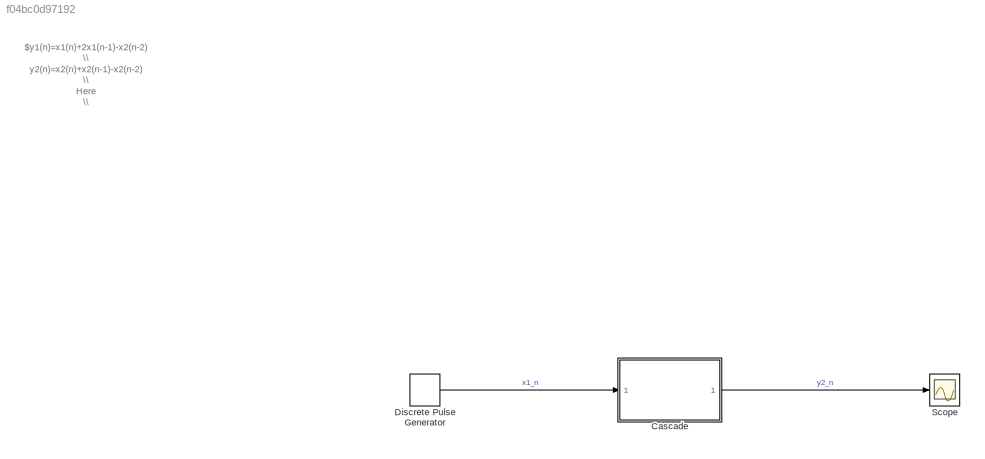
MODEL slx_f04bc0d97192
KIND model
CONFIG AbsTol = auto
CONFIG EnableMultiTasking = off
CONFIG FixedStep = auto
CONFIG MaxStep = auto
CONFIG MinStep = auto
CONFIG RelTol = 1e-3
CONFIG SampleTimeConstraint = Unconstrained
CONFIG SolverName = FixedStepDiscrete
CONFIG StartTime = 0.0
CONFIG StopTime = 1
BLOCK [ModelReference] Cascade
  ModelNameDialog = cascadingblock_referenced
  ModelReferenceVersion = 1.1
  Ports = [1, 1]
BLOCK [DiscretePulseGenerator] Discrete Pulse Generator
  Amplitude = 5
  Period = 10
  Ports = [0, 1]
  PulseWidth = 5
  SampleTime = 0.01
BLOCK [Scope] Scope
  Floating = off
  NumInputPorts = 1
  Ports = [1]
  ScopeSpecificationString = Simulink.scopes.TimeScopeBlockCfg('CurrentConfiguration', extmgr.ConfigurationSet(extmgr.Configuration('Core','General UI',true),extmgr.Configuration('Core','Source UI',true),extmgr.Configuration('Sources','WiredSimulink',true),extmgr.Configuration('Visuals','Time Domain',true,'SerializedDisplays',{struct('MinYLimReal','-13.75','MaxYLimReal','23.75','YLabelReal','','MinYLimMag','0.00000','MaxYLimM...<+1412ch>
ANNOTATION (root): $y1(n)=x1(n)+2x1(n-1)-x2(n-2) \\ y2(n)=x2(n)+x2(n-1)-x2(n-2) \\ Here \\ y1(n)=x2(n)$
LINE Cascade:1 -> Scope:1
LINE Discrete Pulse Generator:1 -> Cascade:1
